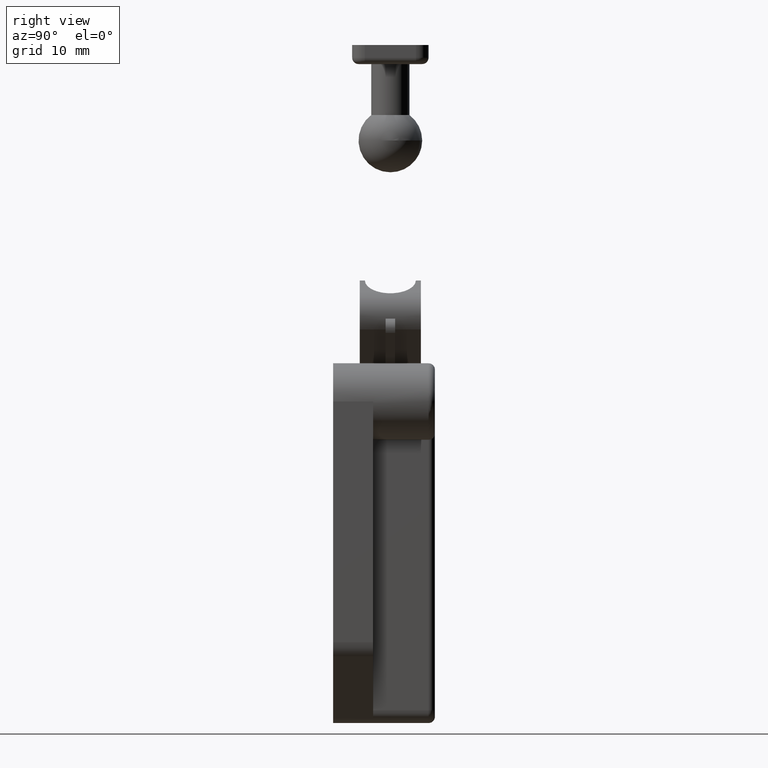
[diagram: clean part render]
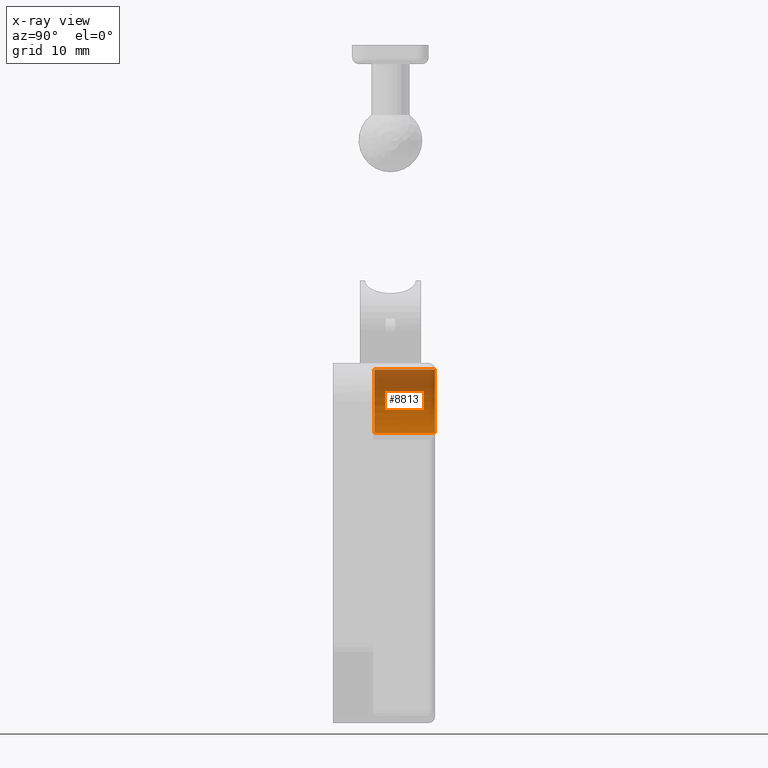
[diagram: x-ray — body ghosted, one internal face saturated and labeled with its STEP entity id]
A machine part, right view, then the same camera in x-ray: the body is ghosted and one INTERNAL B-rep face — a face not visible from any outside direction — is saturated and labeled: STEP entity #8813.
In plain terms, the highlighted cylindrical surface (edge-blend (fillet) strip) has radius 5 mm, axis along (-0, 1, 0).
Its self-contained STEP definition (entity closure, byte-faithful):
#73 = VERTEX_POINT ( 'NONE', #6125 ) ;
#81 = CYLINDRICAL_SURFACE ( 'NONE', #7968, 4.999999999999726400 ) ;
#309 = FACE_OUTER_BOUND ( 'NONE', #2270, .T. ) ;
#388 = VERTEX_POINT ( 'NONE', #3801 ) ;
#512 = DIRECTION ( 'NONE',  ( -0.0000000000000000000, -0.0000000000000000000, 1.000000000000000000 ) ) ;
#623 = CARTESIAN_POINT ( 'NONE',  ( 55.99999999999972300, -14.00000000000000000, 6.499999999999936100 ) ) ;
#667 = DIRECTION ( 'NONE',  ( 1.000000000000000000, 0.0000000000000000000, 0.0000000000000000000 ) ) ;
#1024 = VECTOR ( 'NONE', #4829, 1000.000000000000000 ) ;
#1195 = ORIENTED_EDGE ( 'NONE', *, *, #4918, .F. ) ;
#1272 = CARTESIAN_POINT ( 'NONE',  ( 46.00000000000027000, -13.99999999999975800, 6.499999999999936100 ) ) ;
#1366 = CARTESIAN_POINT ( 'NONE',  ( 55.99999999999972300, -13.99999999999975800, 16.00000000000000000 ) ) ;
#1789 = AXIS2_PLACEMENT_3D ( 'NONE', #7426, #3286, #8130 ) ;
#1929 = DIRECTION ( 'NONE',  ( -0.0000000000000000000, -0.0000000000000000000, 1.000000000000000000 ) ) ;
#1971 = CARTESIAN_POINT ( 'NONE',  ( 51.00000000000000000, -13.99999999999975800, 16.00000000000000000 ) ) ;
#2101 = EDGE_CURVE ( 'NONE', #7383, #4964, #5118, .T. ) ;
#2270 = EDGE_LOOP ( 'NONE', ( #1195, #3568, #3988, #6375, #6500, #3585 ) ) ;
#2657 = DIRECTION ( 'NONE',  ( 1.000000000000000000, 0.0000000000000000000, 0.0000000000000000000 ) ) ;
#2752 = VECTOR ( 'NONE', #1929, 1000.000000000000000 ) ;
#2963 = LINE ( 'NONE', #5365, #2752 ) ;
#3233 = VERTEX_POINT ( 'NONE', #623 ) ;
#3286 = DIRECTION ( 'NONE',  ( -0.0000000000000000000, -0.0000000000000000000, 1.000000000000000000 ) ) ;
#3568 = ORIENTED_EDGE ( 'NONE', *, *, #4090, .T. ) ;
#3585 = ORIENTED_EDGE ( 'NONE', *, *, #5907, .T. ) ;
#3602 = EDGE_CURVE ( 'NONE', #73, #4964, #8513, .T. ) ;
#3801 = CARTESIAN_POINT ( 'NONE',  ( 46.00000000000027000, -13.99999999999975800, 16.00000000000000000 ) ) ;
#3988 = ORIENTED_EDGE ( 'NONE', *, *, #5685, .T. ) ;
#4034 = AXIS2_PLACEMENT_3D ( 'NONE', #4623, #512, #5330 ) ;
#4090 = EDGE_CURVE ( 'NONE', #5750, #388, #2963, .T. ) ;
#4218 = CIRCLE ( 'NONE', #4034, 4.999999999999726400 ) ;
#4623 = CARTESIAN_POINT ( 'NONE',  ( 51.00000000000000000, -13.99999999999975800, 16.00000000000000000 ) ) ;
#4790 = DIRECTION ( 'NONE',  ( -0.0000000000000000000, -0.0000000000000000000, 1.000000000000000000 ) ) ;
#4795 = DIRECTION ( 'NONE',  ( -0.0000000000000000000, -0.0000000000000000000, 1.000000000000000000 ) ) ;
#4829 = DIRECTION ( 'NONE',  ( 0.0000000000000000000, 0.0000000000000000000, -1.000000000000000000 ) ) ;
#4918 = EDGE_CURVE ( 'NONE', #5750, #3233, #7511, .T. ) ;
#4964 = VERTEX_POINT ( 'NONE', #6123 ) ;
#5118 = CIRCLE ( 'NONE', #8371, 4.999999999999726400 ) ;
#5330 = DIRECTION ( 'NONE',  ( 1.000000000000000000, 0.0000000000000000000, 0.0000000000000000000 ) ) ;
#5365 = CARTESIAN_POINT ( 'NONE',  ( 46.00000000000027000, -13.99999999999975800, 16.00000000000000000 ) ) ;
#5685 = EDGE_CURVE ( 'NONE', #388, #7383, #4218, .T. ) ;
#5750 = VERTEX_POINT ( 'NONE', #1272 ) ;
#5907 = EDGE_CURVE ( 'NONE', #73, #3233, #6305, .T. ) ;
#6113 = DIRECTION ( 'NONE',  ( -0.0000000000000000000, -0.0000000000000000000, 1.000000000000000000 ) ) ;
#6123 = CARTESIAN_POINT ( 'NONE',  ( 55.99999999999972300, -13.99999999999975800, 16.00000000000000000 ) ) ;
#6125 = CARTESIAN_POINT ( 'NONE',  ( 55.99999999999972300, -14.00000000000000000, 14.24999999999999100 ) ) ;
#6305 = LINE ( 'NONE', #8989, #1024 ) ;
#6375 = ORIENTED_EDGE ( 'NONE', *, *, #2101, .T. ) ;
#6439 = VECTOR ( 'NONE', #4790, 1000.000000000000000 ) ;
#6500 = ORIENTED_EDGE ( 'NONE', *, *, #3602, .F. ) ;
#7383 = VERTEX_POINT ( 'NONE', #8412 ) ;
#7426 = CARTESIAN_POINT ( 'NONE',  ( 51.00000000000000000, -13.99999999999975800, 6.499999999999936100 ) ) ;
#7511 = CIRCLE ( 'NONE', #1789, 4.999999999999726400 ) ;
#7968 = AXIS2_PLACEMENT_3D ( 'NONE', #1971, #6113, #2657 ) ;
#8130 = DIRECTION ( 'NONE',  ( 1.000000000000000000, 0.0000000000000000000, 0.0000000000000000000 ) ) ;
#8371 = AXIS2_PLACEMENT_3D ( 'NONE', #8961, #4795, #667 ) ;
#8412 = CARTESIAN_POINT ( 'NONE',  ( 50.99980000641847500, -18.99999999599974400, 16.00000000000000000 ) ) ;
#8513 = LINE ( 'NONE', #1366, #6439 ) ;
#8813 = ADVANCED_FACE ( 'NONE', ( #309 ), #81, .F. ) ;
#8961 = CARTESIAN_POINT ( 'NONE',  ( 51.00000000000000000, -13.99999999999975800, 16.00000000000000000 ) ) ;
#8989 = CARTESIAN_POINT ( 'NONE',  ( 55.99999999999972300, -14.00000000000000000, 16.00000000000000000 ) ) ;